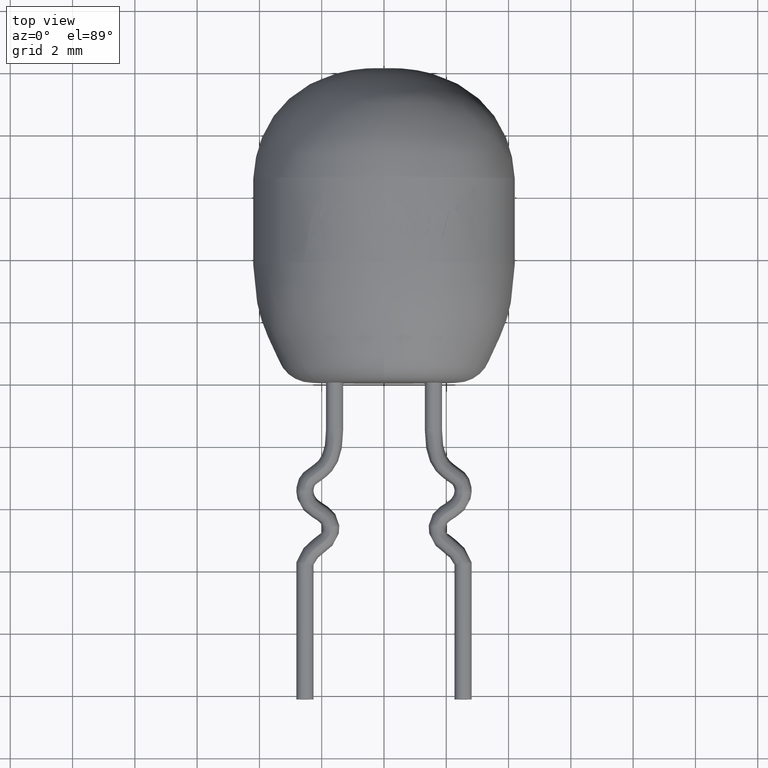
[diagram: clean part render]
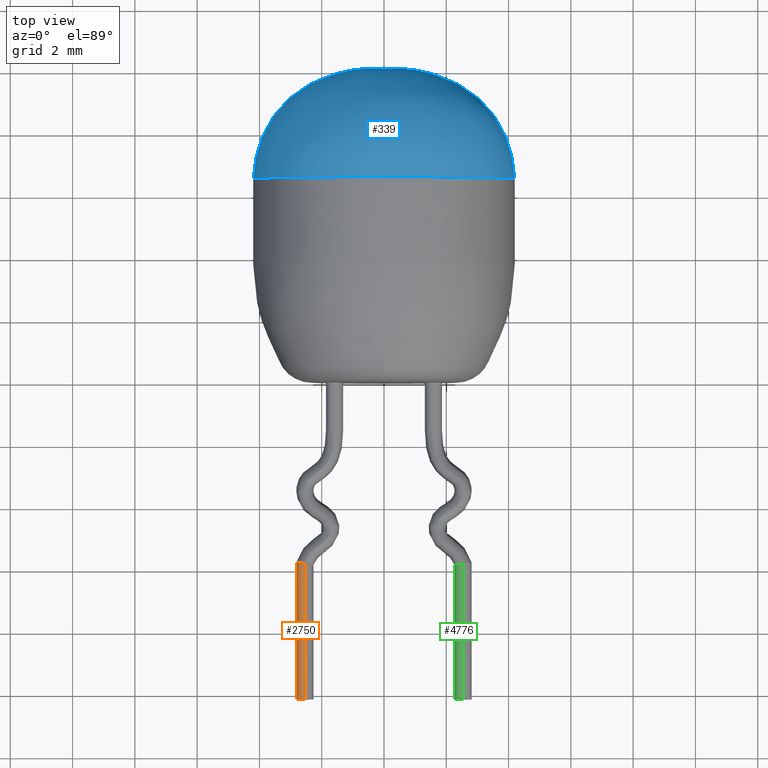
[diagram: same view with three faces highlighted in distinct colors, each labeled with its STEP entity id]
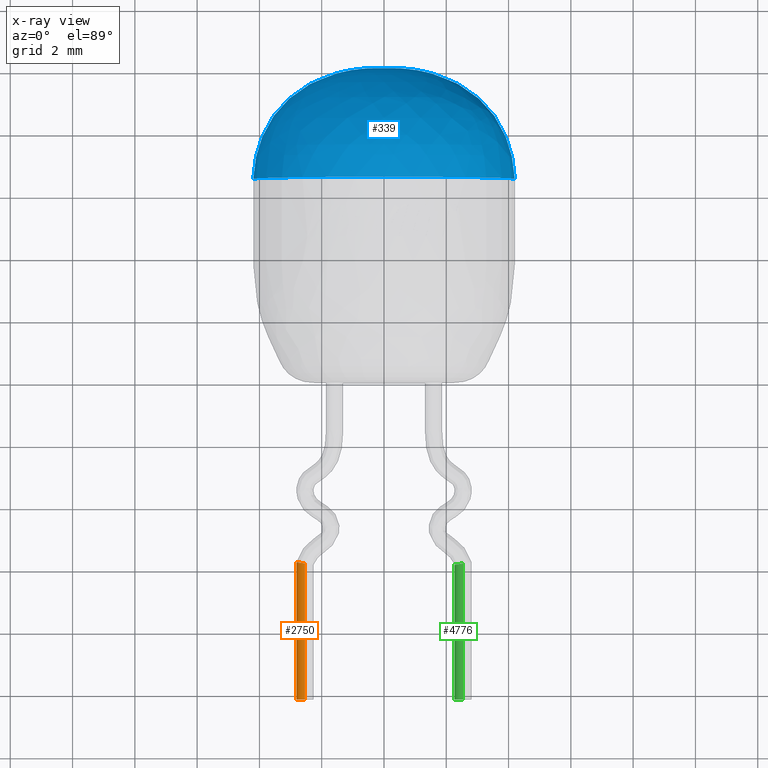
[diagram: x-ray of the same camera — body ghosted, the three highlighted faces saturated]
A machine part, top view with three faces highlighted in distinct colors.
The next image is the same camera in x-ray (body ghosted, the three faces saturated) — at least one of them is partly hidden behind the body in this view.
Their STEP definitions:

[orange] entity #2750 — the highlighted face is a freeform B-spline surface patch.
#355 = CARTESIAN_POINT ( 'NONE',  ( -2.539999999999990700, -10.17285999999999800, 0.2749999999999992500 ) ) ;
#425 =( BOUNDED_SURFACE ( )  B_SPLINE_SURFACE ( 3, 1, ( 
 ( #1883, #637 ),
 ( #658, #4573 ),
 ( #4114, #1082 ),
 ( #3724, #695 ),
 ( #5078, #1965 ),
 ( #4154, #1150 ),
 ( #1943, #2868 ) ),
 .UNSPECIFIED., .T., .F., .F. ) 
 B_SPLINE_SURFACE_WITH_KNOTS ( ( 4, 3, 4 ),
 ( 2, 2 ),
 ( 0.0000000000000000000, 0.5000000000000000000, 1.000000000000000000 ),
 ( 0.0000000000000000000, 1.000000000000000000 ),
 .UNSPECIFIED. ) 
 GEOMETRIC_REPRESENTATION_ITEM ( )  RATIONAL_B_SPLINE_SURFACE ( (
 ( 1.000000000000000000, 1.000000000000000000),
 ( 0.3333333333333333700, 0.3333333333333333700),
 ( 0.3333333333333333700, 0.3333333333333333700),
 ( 1.000000000000000000, 1.000000000000000000),
 ( 0.3333333333333333700, 0.3333333333333333700),
 ( 0.3333333333333333700, 0.3333333333333333700),
 ( 1.000000000000000000, 1.000000000000000000) ) ) 
 REPRESENTATION_ITEM ( '' )  SURFACE ( )  );
#612 = ORIENTED_EDGE ( 'NONE', *, *, #2887, .F. ) ;
#637 = CARTESIAN_POINT ( 'NONE',  ( -2.539999999999990700, -10.17285999999999800, -0.2749999999999992500 ) ) ;
#658 = CARTESIAN_POINT ( 'NONE',  ( -3.090083229037612800, -5.731810913279831600, -0.2749999999999994700 ) ) ;
#695 = CARTESIAN_POINT ( 'NONE',  ( -2.539999999999990700, -10.17285999999999800, 0.2749999999999992500 ) ) ;
#784 = EDGE_CURVE ( 'NONE', #3113, #5197, #2495, .T. ) ;
#925 = FACE_OUTER_BOUND ( 'NONE', #5088, .T. ) ;
#1082 = CARTESIAN_POINT ( 'NONE',  ( -3.090083229037612300, -10.17286000000000000, 0.2749999999999988600 ) ) ;
#1126 = CARTESIAN_POINT ( 'NONE',  ( -2.539999999999991600, -5.812860000000001500, -0.2749999999999992500 ) ) ;
#1150 = CARTESIAN_POINT ( 'NONE',  ( -1.989916770962371700, -10.17286000000000000, -0.2749999999999988600 ) ) ;
#1306 = CARTESIAN_POINT ( 'NONE',  ( -2.539999999999990700, -10.17285999999999800, -0.2749999999999992500 ) ) ;
#1883 = CARTESIAN_POINT ( 'NONE',  ( -2.539999999999991600, -5.812860000000001500, -0.2749999999999992500 ) ) ;
#1943 = CARTESIAN_POINT ( 'NONE',  ( -2.539999999999991600, -5.812860000000001500, -0.2749999999999992500 ) ) ;
#1965 = CARTESIAN_POINT ( 'NONE',  ( -1.989916770962371700, -10.17286000000000000, 0.2749999999999993600 ) ) ;
#2065 = CARTESIAN_POINT ( 'NONE',  ( -2.539999999999990700, -10.17285999999999800, 0.2749999999999992500 ) ) ;
#2417 = CARTESIAN_POINT ( 'NONE',  ( -2.539999999999991600, -5.812860000000001500, 0.2749999999999992500 ) ) ;
#2495 =( BOUNDED_CURVE ( )  B_SPLINE_CURVE ( 3, ( #2065, #4219, #3802, #2496 ),
 .UNSPECIFIED., .F., .F. ) 
 B_SPLINE_CURVE_WITH_KNOTS ( ( 4, 4 ),
 ( 0.4999999999999994400, 1.000000000000000000 ),
 .UNSPECIFIED. ) 
 CURVE ( )  GEOMETRIC_REPRESENTATION_ITEM ( )  RATIONAL_B_SPLINE_CURVE ( ( 1.000000000000000700, 0.3333333333333333700, 0.3333333333333326500, 1.000000000000000000 ) ) 
 REPRESENTATION_ITEM ( '' )  );
#2496 = CARTESIAN_POINT ( 'NONE',  ( -2.539999999999990700, -10.17285999999999800, -0.2749999999999992500 ) ) ;
#2545 = ORIENTED_EDGE ( 'NONE', *, *, #5060, .T. ) ;
#2589 = CARTESIAN_POINT ( 'NONE',  ( -2.539999999999990700, -10.17285999999999800, -0.2749999999999992500 ) ) ;
#2717 = CARTESIAN_POINT ( 'NONE',  ( -2.539999999999991600, -5.812860000000001500, 0.2749999999999992500 ) ) ;
#2750 = ADVANCED_FACE ( 'NONE', ( #925 ), #425, .F. ) ;
#2868 = CARTESIAN_POINT ( 'NONE',  ( -2.539999999999990700, -10.17285999999999800, -0.2749999999999992500 ) ) ;
#2887 = EDGE_CURVE ( 'NONE', #3956, #3725, #3838, .T. ) ;
#3113 = VERTEX_POINT ( 'NONE', #355 ) ;
#3299 = CARTESIAN_POINT ( 'NONE',  ( -2.539999999999991600, -5.812860000000001500, -0.2749999999999992500 ) ) ;
#3309 = CARTESIAN_POINT ( 'NONE',  ( -3.090083229037613700, -5.731810913279831600, 0.2749999999999997400 ) ) ;
#3724 = CARTESIAN_POINT ( 'NONE',  ( -2.539999999999991600, -5.812860000000001500, 0.2749999999999992500 ) ) ;
#3725 = VERTEX_POINT ( 'NONE', #2717 ) ;
#3743 = CARTESIAN_POINT ( 'NONE',  ( -2.539999999999991600, -5.812860000000001500, 0.2749999999999992500 ) ) ;
#3792 = CARTESIAN_POINT ( 'NONE',  ( -2.539999999999991600, -5.812860000000001500, -0.2749999999999992500 ) ) ;
#3800 = B_SPLINE_CURVE_WITH_KNOTS ( 'NONE', 1,
 ( #3792, #2589 ),
 .UNSPECIFIED., .F., .F.,
 ( 2, 2 ),
 ( 0.0000000000000000000, 1.000000000000000000 ),
 .UNSPECIFIED. ) ;
#3802 = CARTESIAN_POINT ( 'NONE',  ( -3.090083229037614100, -10.17285999999999800, -0.2749999999999994700 ) ) ;
#3838 =( BOUNDED_CURVE ( )  B_SPLINE_CURVE ( 3, ( #1126, #5510, #3309, #3743 ),
 .UNSPECIFIED., .F., .F. ) 
 B_SPLINE_CURVE_WITH_KNOTS ( ( 4, 4 ),
 ( 0.0000000000000000000, 0.5000000000000007800 ),
 .UNSPECIFIED. ) 
 CURVE ( )  GEOMETRIC_REPRESENTATION_ITEM ( )  RATIONAL_B_SPLINE_CURVE ( ( 1.000000000000000000, 0.3333333333333323200, 0.3333333333333333700, 1.000000000000001100 ) ) 
 REPRESENTATION_ITEM ( '' )  );
#3956 = VERTEX_POINT ( 'NONE', #3299 ) ;
#4114 = CARTESIAN_POINT ( 'NONE',  ( -3.090083229037612800, -5.731810913279831600, 0.2749999999999988600 ) ) ;
#4154 = CARTESIAN_POINT ( 'NONE',  ( -1.989916770962372600, -5.893909086720172200, -0.2749999999999988600 ) ) ;
#4219 = CARTESIAN_POINT ( 'NONE',  ( -3.090083229037612300, -10.17285999999999800, 0.2749999999999995200 ) ) ;
#4444 = ORIENTED_EDGE ( 'NONE', *, *, #5468, .F. ) ;
#4573 = CARTESIAN_POINT ( 'NONE',  ( -3.090083229037612300, -10.17286000000000000, -0.2749999999999994700 ) ) ;
#4577 = CARTESIAN_POINT ( 'NONE',  ( -2.539999999999990700, -10.17285999999999800, 0.2749999999999992500 ) ) ;
#5060 = EDGE_CURVE ( 'NONE', #3956, #5197, #3800, .T. ) ;
#5078 = CARTESIAN_POINT ( 'NONE',  ( -1.989916770962372600, -5.893909086720172200, 0.2749999999999993600 ) ) ;
#5088 = EDGE_LOOP ( 'NONE', ( #4444, #612, #2545, #5369 ) ) ;
#5197 = VERTEX_POINT ( 'NONE', #1306 ) ;
#5363 = B_SPLINE_CURVE_WITH_KNOTS ( 'NONE', 1,
 ( #2417, #4577 ),
 .UNSPECIFIED., .F., .F.,
 ( 2, 2 ),
 ( 0.0000000000000000000, 1.000000000000000000 ),
 .UNSPECIFIED. ) ;
#5369 = ORIENTED_EDGE ( 'NONE', *, *, #784, .F. ) ;
#5468 = EDGE_CURVE ( 'NONE', #3725, #3113, #5363, .T. ) ;
#5510 = CARTESIAN_POINT ( 'NONE',  ( -3.090083229037615500, -5.731810913279832500, -0.2749999999999995200 ) ) ;

[blue] entity #339 — the highlighted face is a freeform B-spline surface patch.
#1 = VERTEX_POINT ( 'NONE', #2329 ) ;
#166 = CARTESIAN_POINT ( 'NONE',  ( -4.080983394922363900, 8.826645739886954400, 8.161966789844727900 ) ) ;
#187 = DIRECTION ( 'NONE',  ( -0.0000000000000000000, -1.000000000000000000, -0.0000000000000000000 ) ) ;
#231 = CARTESIAN_POINT ( 'NONE',  ( 0.5999999999999917600, 10.08713999999999800, 0.0000000000000000000 ) ) ;
#316 = DIRECTION ( 'NONE',  ( -0.0000000000000000000, -1.000000000000000000, -0.0000000000000000000 ) ) ;
#339 = ADVANCED_FACE ( 'NONE', ( #4928 ), #2240, .F. ) ;
#675 = CARTESIAN_POINT ( 'NONE',  ( 0.0000000000000000000, 10.08714000000000000, 0.0000000000000000000 ) ) ;
#700 = CARTESIAN_POINT ( 'NONE',  ( 2.431717464367224600, 9.952714806683671300, 4.863434928734448300 ) ) ;
#724 = AXIS2_PLACEMENT_3D ( 'NONE', #3466, #2160, #844 ) ;
#731 = CARTESIAN_POINT ( 'NONE',  ( -4.200000000000000200, 6.541510289999998800, 5.143516556418881000E-016 ) ) ;
#844 = DIRECTION ( 'NONE',  ( 0.0000000000000000000, 0.0000000000000000000, -1.000000000000000000 ) ) ;
#891 = EDGE_LOOP ( 'NONE', ( #3085, #3864, #4416, #3842, #2440 ) ) ;
#953 = CARTESIAN_POINT ( 'NONE',  ( 5.143516556418883900E-016, 6.541510289999998800, 4.200000000000000200 ) ) ;
#1066 = CARTESIAN_POINT ( 'NONE',  ( 4.080983394922364800, 8.826645739886954400, 8.161966789844727900 ) ) ;
#1122 = CARTESIAN_POINT ( 'NONE',  ( -0.5999999999999997600, 10.08714000000000000, 2.939152317953662400E-016 ) ) ;
#1154 = CARTESIAN_POINT ( 'NONE',  ( 4.200000000000000200, 6.541510290000000600, 8.399999999999998600 ) ) ;
#1459 = CARTESIAN_POINT ( 'NONE',  ( 2.431717464367224600, 9.952714806683673000, 0.0000000000000000000 ) ) ;
#1569 = CARTESIAN_POINT ( 'NONE',  ( -0.5999999999999997600, 10.08714000000000000, 2.939152317953662400E-016 ) ) ;
#1606 = EDGE_CURVE ( 'NONE', #3057, #2227, #1923, .T. ) ;
#1681 = B_SPLINE_CURVE_WITH_KNOTS ( 'NONE', 3,
 ( #1122, #3722, #3289, #731 ),
 .UNSPECIFIED., .F., .F.,
 ( 4, 4 ),
 ( 0.0000000000000000000, 1.000000000000000000 ),
 .UNSPECIFIED. ) ;
#1860 = EDGE_CURVE ( 'NONE', #5292, #3057, #2529, .T. ) ;
#1923 = CIRCLE ( 'NONE', #724, 4.200000000000000200 ) ;
#1973 = CARTESIAN_POINT ( 'NONE',  ( -2.431717464367224100, 9.952714806683671300, 4.863434928734448300 ) ) ;
#1979 = CIRCLE ( 'NONE', #2675, 4.200000000000000200 ) ;
#2050 = CARTESIAN_POINT ( 'NONE',  ( -2.431717464367224600, 9.952714806683673000, 2.977995009168039600E-016 ) ) ;
#2068 = DIRECTION ( 'NONE',  ( 0.0000000000000000000, 0.0000000000000000000, -1.000000000000000000 ) ) ;
#2160 = DIRECTION ( 'NONE',  ( -0.0000000000000000000, -1.000000000000000000, -0.0000000000000000000 ) ) ;
#2227 = VERTEX_POINT ( 'NONE', #953 ) ;
#2240 =( BOUNDED_SURFACE ( )  B_SPLINE_SURFACE ( 3, 3, ( 
 ( #231, #2453, #4121, #2893 ),
 ( #5484, #700, #1973, #2050 ),
 ( #4597, #1066, #166, #3314 ),
 ( #4578, #1154, #5028, #2399 ) ),
 .UNSPECIFIED., .F., .F., .T. ) 
 B_SPLINE_SURFACE_WITH_KNOTS ( ( 4, 4 ),
 ( 4, 4 ),
 ( 0.0000000000000000000, 1.000000000000000000 ),
 ( 0.0000000000000000000, 1.000000000000000000 ),
 .UNSPECIFIED. ) 
 GEOMETRIC_REPRESENTATION_ITEM ( )  RATIONAL_B_SPLINE_SURFACE ( (
 ( 1.000000000000000000, 0.3333333333333334300, 0.3333333333333334300, 1.000000000000000000),
 ( 1.000000000000000000, 0.3333333333333334300, 0.3333333333333334300, 1.000000000000000000),
 ( 1.000000000000000000, 0.3333333333333334300, 0.3333333333333334300, 1.000000000000000000),
 ( 1.000000000000000000, 0.3333333333333334300, 0.3333333333333334300, 1.000000000000000000) ) ) 
 REPRESENTATION_ITEM ( '' )  SURFACE ( )  );
#2329 = CARTESIAN_POINT ( 'NONE',  ( -4.200000000000000200, 6.541510289999998800, 5.143516556418881000E-016 ) ) ;
#2399 = CARTESIAN_POINT ( 'NONE',  ( -4.200000000000000200, 6.541510289999999700, 5.143516556418883900E-016 ) ) ;
#2401 = CARTESIAN_POINT ( 'NONE',  ( 0.5999999999999997600, 10.08714000000000000, 0.0000000000000000000 ) ) ;
#2440 = ORIENTED_EDGE ( 'NONE', *, *, #1860, .F. ) ;
#2453 = CARTESIAN_POINT ( 'NONE',  ( 0.5999999999999917600, 10.08713999999999800, 1.199999999999983100 ) ) ;
#2502 = CARTESIAN_POINT ( 'NONE',  ( 4.200000000000000200, 6.541510289999998800, 0.0000000000000000000 ) ) ;
#2529 = B_SPLINE_CURVE_WITH_KNOTS ( 'NONE', 3,
 ( #2401, #1459, #5463, #4967 ),
 .UNSPECIFIED., .F., .F.,
 ( 4, 4 ),
 ( 0.0000000000000000000, 1.000000000000000000 ),
 .UNSPECIFIED. ) ;
#2675 = AXIS2_PLACEMENT_3D ( 'NONE', #2935, #316, #2068 ) ;
#2893 = CARTESIAN_POINT ( 'NONE',  ( -0.5999999999999917600, 10.08713999999999800, 7.347880794884016700E-017 ) ) ;
#2935 = CARTESIAN_POINT ( 'NONE',  ( 0.0000000000000000000, 6.541510289999998800, 0.0000000000000000000 ) ) ;
#3057 = VERTEX_POINT ( 'NONE', #2502 ) ;
#3065 = EDGE_CURVE ( 'NONE', #2227, #1, #1979, .T. ) ;
#3085 = ORIENTED_EDGE ( 'NONE', *, *, #4408, .T. ) ;
#3289 = CARTESIAN_POINT ( 'NONE',  ( -4.080983394922364800, 8.826645739886954400, 4.997763251965172600E-016 ) ) ;
#3314 = CARTESIAN_POINT ( 'NONE',  ( -4.080983394922364800, 8.826645739886954400, 4.997763251965172600E-016 ) ) ;
#3466 = CARTESIAN_POINT ( 'NONE',  ( 0.0000000000000000000, 6.541510289999998800, 0.0000000000000000000 ) ) ;
#3532 = EDGE_CURVE ( 'NONE', #3913, #1, #1681, .T. ) ;
#3722 = CARTESIAN_POINT ( 'NONE',  ( -2.431717464367224600, 9.952714806683673000, 2.977995009168039600E-016 ) ) ;
#3745 = DIRECTION ( 'NONE',  ( 0.0000000000000000000, 0.0000000000000000000, -1.000000000000000000 ) ) ;
#3784 = AXIS2_PLACEMENT_3D ( 'NONE', #675, #187, #3745 ) ;
#3842 = ORIENTED_EDGE ( 'NONE', *, *, #1606, .F. ) ;
#3864 = ORIENTED_EDGE ( 'NONE', *, *, #3532, .T. ) ;
#3913 = VERTEX_POINT ( 'NONE', #1569 ) ;
#4121 = CARTESIAN_POINT ( 'NONE',  ( -0.5999999999999915400, 10.08713999999999800, 1.199999999999983100 ) ) ;
#4408 = EDGE_CURVE ( 'NONE', #5292, #3913, #4828, .T. ) ;
#4416 = ORIENTED_EDGE ( 'NONE', *, *, #3065, .F. ) ;
#4578 = CARTESIAN_POINT ( 'NONE',  ( 4.200000000000000200, 6.541510289999999700, 0.0000000000000000000 ) ) ;
#4597 = CARTESIAN_POINT ( 'NONE',  ( 4.080983394922364800, 8.826645739886954400, 0.0000000000000000000 ) ) ;
#4828 = CIRCLE ( 'NONE', #3784, 0.5999999999999997600 ) ;
#4928 = FACE_OUTER_BOUND ( 'NONE', #891, .T. ) ;
#4967 = CARTESIAN_POINT ( 'NONE',  ( 4.200000000000000200, 6.541510289999998800, 0.0000000000000000000 ) ) ;
#5028 = CARTESIAN_POINT ( 'NONE',  ( -4.199999999999999300, 6.541510290000000600, 8.399999999999998600 ) ) ;
#5292 = VERTEX_POINT ( 'NONE', #5301 ) ;
#5301 = CARTESIAN_POINT ( 'NONE',  ( 0.5999999999999997600, 10.08714000000000000, 0.0000000000000000000 ) ) ;
#5463 = CARTESIAN_POINT ( 'NONE',  ( 4.080983394922364800, 8.826645739886954400, 0.0000000000000000000 ) ) ;
#5484 = CARTESIAN_POINT ( 'NONE',  ( 2.431717464367224600, 9.952714806683673000, 0.0000000000000000000 ) ) ;

[green] entity #4776 — the highlighted face is a freeform B-spline surface patch.
#11 = CARTESIAN_POINT ( 'NONE',  ( 3.090083229037612300, -10.17286000000000000, 0.2749999999999988600 ) ) ;
#103 = CARTESIAN_POINT ( 'NONE',  ( 1.989916770962374600, -5.893909086720171300, -0.2749999999999988600 ) ) ;
#486 = CARTESIAN_POINT ( 'NONE',  ( 3.090083229037612300, -10.17286000000000000, -0.2749999999999994700 ) ) ;
#505 = CARTESIAN_POINT ( 'NONE',  ( 2.539999999999990700, -10.17285999999999800, 0.2749999999999992500 ) ) ;
#568 =( BOUNDED_CURVE ( )  B_SPLINE_CURVE ( 3, ( #1004, #4140, #4944, #2323 ),
 .UNSPECIFIED., .F., .F. ) 
 B_SPLINE_CURVE_WITH_KNOTS ( ( 4, 4 ),
 ( 0.0000000000000000000, 0.4999999999999994400 ),
 .UNSPECIFIED. ) 
 CURVE ( )  GEOMETRIC_REPRESENTATION_ITEM ( )  RATIONAL_B_SPLINE_CURVE ( ( 1.000000000000000000, 0.3333333333333340900, 0.3333333333333333700, 0.9999999999999992200 ) ) 
 REPRESENTATION_ITEM ( '' )  );
#598 = CARTESIAN_POINT ( 'NONE',  ( 2.539999999999991600, -5.812860000000001500, -0.2749999999999992500 ) ) ;
#881 = CARTESIAN_POINT ( 'NONE',  ( 2.539999999999991600, -5.812860000000001500, 0.2749999999999992500 ) ) ;
#899 = VERTEX_POINT ( 'NONE', #5256 ) ;
#915 = CARTESIAN_POINT ( 'NONE',  ( 2.539999999999990700, -10.17285999999999800, -0.2749999999999992500 ) ) ;
#1004 = CARTESIAN_POINT ( 'NONE',  ( 2.539999999999990700, -10.17285999999999800, -0.2749999999999992500 ) ) ;
#1255 = B_SPLINE_CURVE_WITH_KNOTS ( 'NONE', 1,
 ( #4285, #2936 ),
 .UNSPECIFIED., .F., .F.,
 ( 2, 2 ),
 ( 0.0000000000000000000, 1.000000000000000000 ),
 .UNSPECIFIED. ) ;
#1310 = CARTESIAN_POINT ( 'NONE',  ( 2.539999999999990700, -10.17285999999999800, -0.2749999999999992500 ) ) ;
#1384 = CARTESIAN_POINT ( 'NONE',  ( 1.989916770962371700, -10.17286000000000000, 0.2749999999999993600 ) ) ;
#1421 = B_SPLINE_CURVE_WITH_KNOTS ( 'NONE', 1,
 ( #2460, #3827 ),
 .UNSPECIFIED., .F., .F.,
 ( 2, 2 ),
 ( 0.0000000000000000000, 1.000000000000000000 ),
 .UNSPECIFIED. ) ;
#1433 = CARTESIAN_POINT ( 'NONE',  ( 2.539999999999990700, -10.17285999999999800, -0.2749999999999992500 ) ) ;
#1854 = EDGE_CURVE ( 'NONE', #4378, #899, #568, .T. ) ;
#1897 = EDGE_CURVE ( 'NONE', #5312, #4378, #1255, .T. ) ;
#2202 = VERTEX_POINT ( 'NONE', #4017 ) ;
#2236 = ORIENTED_EDGE ( 'NONE', *, *, #1897, .T. ) ;
#2323 = CARTESIAN_POINT ( 'NONE',  ( 2.539999999999990700, -10.17285999999999800, 0.2749999999999992500 ) ) ;
#2460 = CARTESIAN_POINT ( 'NONE',  ( 2.539999999999991600, -5.812860000000001500, 0.2749999999999992500 ) ) ;
#2649 = CARTESIAN_POINT ( 'NONE',  ( 2.539999999999991600, -5.812860000000001500, -0.2749999999999992500 ) ) ;
#2936 = CARTESIAN_POINT ( 'NONE',  ( 2.539999999999990700, -10.17285999999999800, -0.2749999999999992500 ) ) ;
#2963 = ORIENTED_EDGE ( 'NONE', *, *, #5325, .T. ) ;
#3047 =( BOUNDED_SURFACE ( )  B_SPLINE_SURFACE ( 3, 1, ( 
 ( #2649, #1310 ),
 ( #3506, #486 ),
 ( #3559, #11 ),
 ( #881, #505 ),
 ( #3938, #1384 ),
 ( #5743, #4870 ),
 ( #3978, #915 ) ),
 .UNSPECIFIED., .T., .F., .F. ) 
 B_SPLINE_SURFACE_WITH_KNOTS ( ( 4, 3, 4 ),
 ( 2, 2 ),
 ( 0.0000000000000000000, 0.5000000000000000000, 1.000000000000000000 ),
 ( 0.0000000000000000000, 1.000000000000000000 ),
 .UNSPECIFIED. ) 
 GEOMETRIC_REPRESENTATION_ITEM ( )  RATIONAL_B_SPLINE_SURFACE ( (
 ( 1.000000000000000000, 1.000000000000000000),
 ( 0.3333333333333333700, 0.3333333333333333700),
 ( 0.3333333333333333700, 0.3333333333333333700),
 ( 1.000000000000000000, 1.000000000000000000),
 ( 0.3333333333333333700, 0.3333333333333333700),
 ( 0.3333333333333333700, 0.3333333333333333700),
 ( 1.000000000000000000, 1.000000000000000000) ) ) 
 REPRESENTATION_ITEM ( '' )  SURFACE ( )  );
#3213 = CARTESIAN_POINT ( 'NONE',  ( 2.539999999999991600, -5.812860000000001500, 0.2749999999999992500 ) ) ;
#3236 = CARTESIAN_POINT ( 'NONE',  ( 1.989916770962372400, -5.893909086720172200, 0.2749999999999985200 ) ) ;
#3506 = CARTESIAN_POINT ( 'NONE',  ( 3.090083229037612800, -5.731810913279831600, -0.2749999999999994700 ) ) ;
#3559 = CARTESIAN_POINT ( 'NONE',  ( 3.090083229037612800, -5.731810913279831600, 0.2749999999999988600 ) ) ;
#3570 = ORIENTED_EDGE ( 'NONE', *, *, #1854, .T. ) ;
#3827 = CARTESIAN_POINT ( 'NONE',  ( 2.539999999999990700, -10.17285999999999800, 0.2749999999999992500 ) ) ;
#3938 = CARTESIAN_POINT ( 'NONE',  ( 1.989916770962372600, -5.893909086720172200, 0.2749999999999993600 ) ) ;
#3978 = CARTESIAN_POINT ( 'NONE',  ( 2.539999999999991600, -5.812860000000001500, -0.2749999999999992500 ) ) ;
#4017 = CARTESIAN_POINT ( 'NONE',  ( 2.539999999999991600, -5.812860000000001500, 0.2749999999999992500 ) ) ;
#4140 = CARTESIAN_POINT ( 'NONE',  ( 1.989916770962373700, -10.17286000000000000, -0.2749999999999988600 ) ) ;
#4285 = CARTESIAN_POINT ( 'NONE',  ( 2.539999999999991600, -5.812860000000001500, -0.2749999999999992500 ) ) ;
#4378 = VERTEX_POINT ( 'NONE', #1433 ) ;
#4776 = ADVANCED_FACE ( 'NONE', ( #5669 ), #3047, .T. ) ;
#4870 = CARTESIAN_POINT ( 'NONE',  ( 1.989916770962371700, -10.17286000000000000, -0.2749999999999988600 ) ) ;
#4940 = CARTESIAN_POINT ( 'NONE',  ( 2.539999999999991600, -5.812860000000001500, -0.2749999999999992500 ) ) ;
#4944 = CARTESIAN_POINT ( 'NONE',  ( 1.989916770962371700, -10.17285999999999800, 0.2749999999999986900 ) ) ;
#4980 = EDGE_CURVE ( 'NONE', #2202, #899, #1421, .T. ) ;
#5159 = ORIENTED_EDGE ( 'NONE', *, *, #4980, .F. ) ;
#5243 = EDGE_LOOP ( 'NONE', ( #5159, #2963, #2236, #3570 ) ) ;
#5256 = CARTESIAN_POINT ( 'NONE',  ( 2.539999999999990700, -10.17285999999999800, 0.2749999999999992500 ) ) ;
#5312 = VERTEX_POINT ( 'NONE', #598 ) ;
#5325 = EDGE_CURVE ( 'NONE', #2202, #5312, #5441, .T. ) ;
#5441 =( BOUNDED_CURVE ( )  B_SPLINE_CURVE ( 3, ( #3213, #3236, #103, #4940 ),
 .UNSPECIFIED., .F., .F. ) 
 B_SPLINE_CURVE_WITH_KNOTS ( ( 4, 4 ),
 ( 0.5000000000000007800, 1.000000000000000000 ),
 .UNSPECIFIED. ) 
 CURVE ( )  GEOMETRIC_REPRESENTATION_ITEM ( )  RATIONAL_B_SPLINE_CURVE ( ( 0.9999999999999990000, 0.3333333333333333700, 0.3333333333333344300, 1.000000000000000000 ) ) 
 REPRESENTATION_ITEM ( '' )  );
#5669 = FACE_OUTER_BOUND ( 'NONE', #5243, .T. ) ;
#5743 = CARTESIAN_POINT ( 'NONE',  ( 1.989916770962372600, -5.893909086720172200, -0.2749999999999988600 ) ) ;